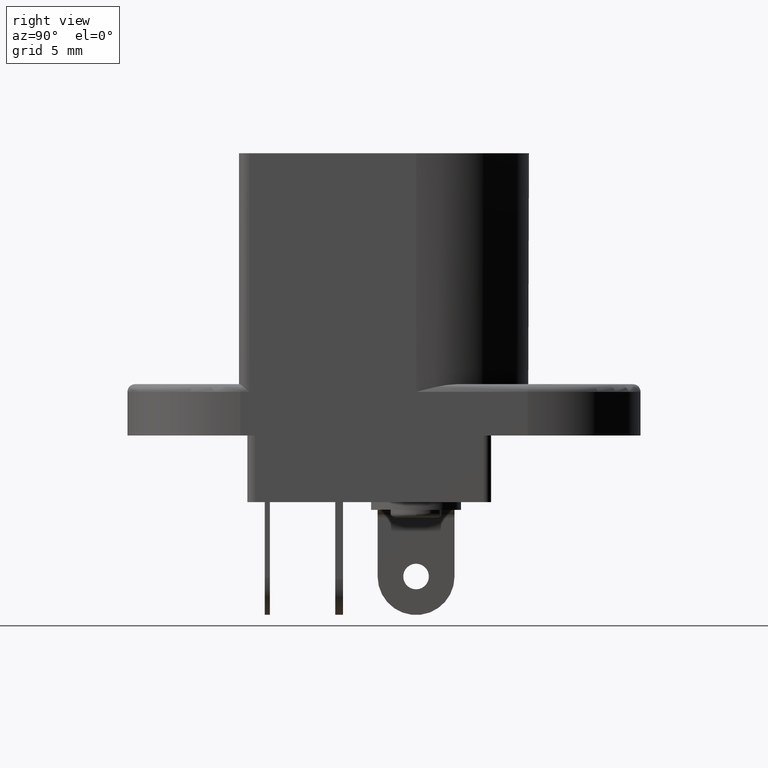
[diagram: clean part render]
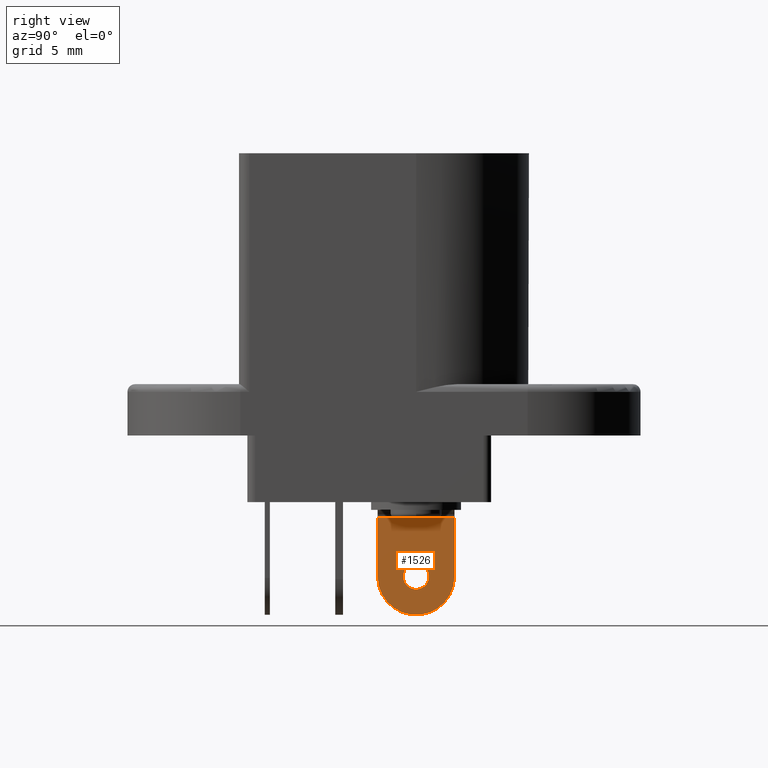
[diagram: same view with one face highlighted and labeled with its STEP entity id]
A machine part, right view. The second image highlights one B-rep face of the part: STEP entity #1526.
In plain terms, the highlighted planar face has unit normal (-1, 0, 0).
Its self-contained STEP definition (entity closure, byte-faithful):
#33=FACE_BOUND('',#524,.T.);
#70=PLANE('',#1656);
#164=LINE('',#2385,#298);
#174=LINE('',#2406,#308);
#175=LINE('',#2409,#309);
#298=VECTOR('',#1945,1000.);
#308=VECTOR('',#1967,1000.);
#309=VECTOR('',#1970,1000.);
#432=FACE_OUTER_BOUND('',#523,.T.);
#523=EDGE_LOOP('',(#1220,#1221,#1222,#1223));
#524=EDGE_LOOP('',(#1224));
#580=CIRCLE('',#1596,0.5);
#600=CIRCLE('',#1655,1.5);
#648=VERTEX_POINT('',#2198);
#709=VERTEX_POINT('',#2382);
#710=VERTEX_POINT('',#2384);
#715=VERTEX_POINT('',#2404);
#716=VERTEX_POINT('',#2408);
#790=EDGE_CURVE('',#648,#648,#580,.T.);
#882=EDGE_CURVE('',#710,#709,#164,.T.);
#893=EDGE_CURVE('',#709,#715,#174,.T.);
#894=EDGE_CURVE('',#716,#710,#175,.T.);
#896=EDGE_CURVE('',#716,#715,#600,.T.);
#1220=ORIENTED_EDGE('',*,*,#882,.T.);
#1221=ORIENTED_EDGE('',*,*,#893,.T.);
#1222=ORIENTED_EDGE('',*,*,#896,.F.);
#1223=ORIENTED_EDGE('',*,*,#894,.T.);
#1224=ORIENTED_EDGE('',*,*,#790,.T.);
#1526=ADVANCED_FACE('',(#432,#33),#70,.F.);
#1596=AXIS2_PLACEMENT_3D('',#2199,#1770,#1771);
#1655=AXIS2_PLACEMENT_3D('',#2412,#1974,#1975);
#1656=AXIS2_PLACEMENT_3D('',#2413,#1976,#1977);
#1770=DIRECTION('center_axis',(-1.,0.,0.));
#1771=DIRECTION('ref_axis',(0.,0.,1.));
#1945=DIRECTION('',(0.,-1.,0.));
#1967=DIRECTION('',(0.,0.,-1.));
#1970=DIRECTION('',(0.,0.,1.));
#1974=DIRECTION('center_axis',(-1.,0.,0.));
#1975=DIRECTION('ref_axis',(0.,0.,1.));
#1976=DIRECTION('center_axis',(-1.,0.,0.));
#1977=DIRECTION('ref_axis',(0.,0.,1.));
#2198=CARTESIAN_POINT('',(-4.75,4.80868746285385E-16,-8.));
#2199=CARTESIAN_POINT('Origin',(-4.75,5.42101086242752E-16,-7.5));
#2382=CARTESIAN_POINT('',(-4.75,-1.5,-5.2));
#2384=CARTESIAN_POINT('',(-4.75,1.5,-5.2));
#2385=CARTESIAN_POINT('',(-4.75,1.5,-5.2));
#2404=CARTESIAN_POINT('',(-4.75,-1.5,-7.5));
#2406=CARTESIAN_POINT('',(-4.75,-1.5,-9.));
#2408=CARTESIAN_POINT('',(-4.75,1.5,-7.5));
#2409=CARTESIAN_POINT('',(-4.75,1.5,-9.));
#2412=CARTESIAN_POINT('Origin',(-4.75,5.42101086242752E-16,-7.5));
#2413=CARTESIAN_POINT('Origin',(-4.75,1.5,-9.));